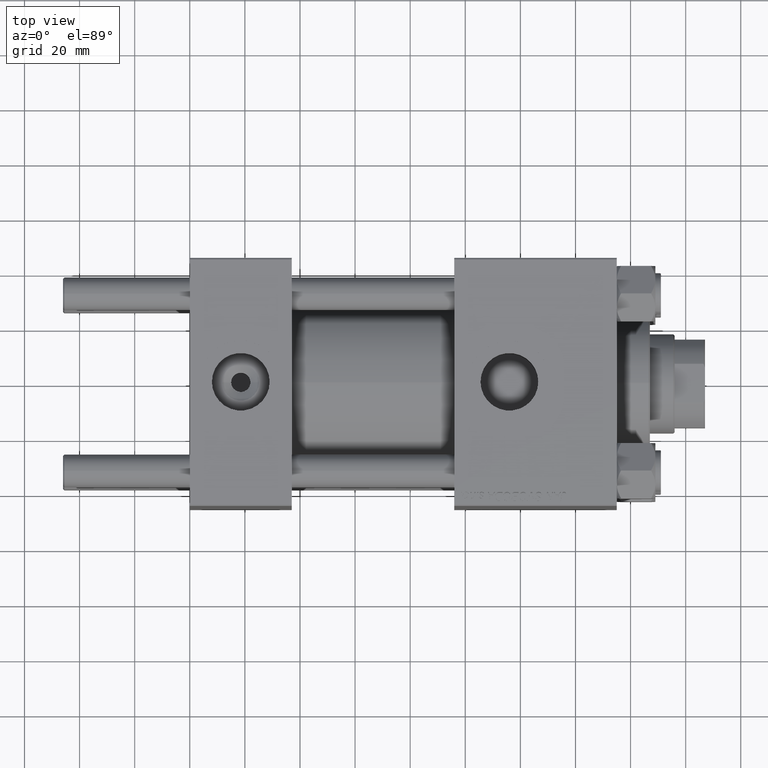
[diagram: clean part render]
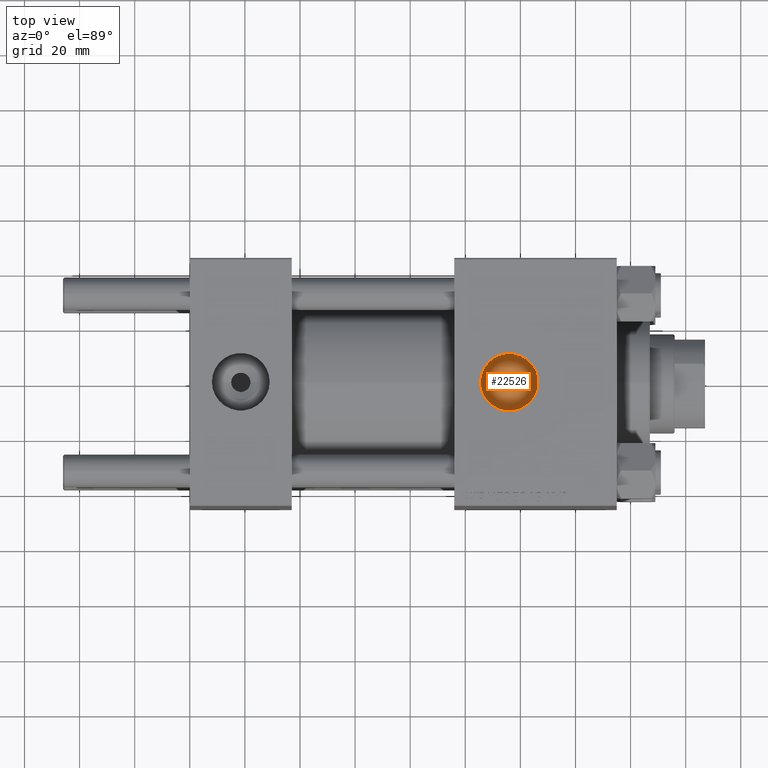
[diagram: same view with one face highlighted and labeled with its STEP entity id]
A machine part, top view. The second image highlights one B-rep face of the part: STEP entity #22526.
In plain terms, the highlighted planar face has unit normal (0, 0, 1).
Its self-contained STEP definition (entity closure, byte-faithful):
#1227 = VECTOR ( 'NONE', #41756, 1000.000000000000000 ) ;
#2108 = CARTESIAN_POINT ( 'NONE',  ( 126.2999999999999972, -1.934011375354403928, 28.59999999999998721 ) ) ;
#2883 = AXIS2_PLACEMENT_3D ( 'NONE', #12881, #35772, #31487 ) ;
#3517 = EDGE_CURVE ( 'NONE', #19360, #13365, #35632, .T. ) ;
#4107 = CARTESIAN_POINT ( 'NONE',  ( 105.5199999999999960, -6.938893903907227589E-15, 28.59999999999998721 ) ) ;
#5477 = CIRCLE ( 'NONE', #47311, 10.48000000000000398 ) ;
#6266 = ORIENTED_EDGE ( 'NONE', *, *, #32149, .T. ) ;
#11311 = CARTESIAN_POINT ( 'NONE',  ( 116.0000000000000000, -6.938893903907227589E-15, 28.59999999999998721 ) ) ;
#12881 = CARTESIAN_POINT ( 'NONE',  ( 116.0000000000000000, -6.938893903907227589E-15, 28.59999999999998721 ) ) ;
#13350 = ORIENTED_EDGE ( 'NONE', *, *, #22627, .T. ) ;
#13358 = PLANE ( 'NONE',  #2883 ) ;
#13365 = VERTEX_POINT ( 'NONE', #2108 ) ;
#15323 = CARTESIAN_POINT ( 'NONE',  ( 126.2999999999999972, 0.000000000000000000, 28.59999999999998721 ) ) ;
#16153 = DIRECTION ( 'NONE',  ( 1.000000000000000000, 0.000000000000000000, 0.000000000000000000 ) ) ;
#18980 = CIRCLE ( 'NONE', #30989, 10.48000000000000398 ) ;
#19360 = VERTEX_POINT ( 'NONE', #29444 ) ;
#22526 = ADVANCED_FACE ( 'NONE', ( #49402 ), #13358, .T. ) ;
#22627 = EDGE_CURVE ( 'NONE', #19360, #26767, #18980, .T. ) ;
#26767 = VERTEX_POINT ( 'NONE', #4107 ) ;
#28051 = EDGE_LOOP ( 'NONE', ( #13350, #6266, #35423 ) ) ;
#29444 = CARTESIAN_POINT ( 'NONE',  ( 126.2999999999999972, 1.934011375354389939, 28.59999999999998721 ) ) ;
#30989 = AXIS2_PLACEMENT_3D ( 'NONE', #46861, #35278, #16153 ) ;
#31487 = DIRECTION ( 'NONE',  ( 1.000000000000000000, 0.000000000000000000, -0.000000000000000000 ) ) ;
#32149 = EDGE_CURVE ( 'NONE', #26767, #13365, #5477, .T. ) ;
#35278 = DIRECTION ( 'NONE',  ( 0.000000000000000000, 0.000000000000000000, 1.000000000000000000 ) ) ;
#35423 = ORIENTED_EDGE ( 'NONE', *, *, #3517, .F. ) ;
#35632 = LINE ( 'NONE', #15323, #1227 ) ;
#35772 = DIRECTION ( 'NONE',  ( 0.000000000000000000, 0.000000000000000000, 1.000000000000000000 ) ) ;
#37743 = DIRECTION ( 'NONE',  ( 1.000000000000000000, 0.000000000000000000, 0.000000000000000000 ) ) ;
#41756 = DIRECTION ( 'NONE',  ( 0.000000000000000000, -1.000000000000000000, 0.000000000000000000 ) ) ;
#45051 = DIRECTION ( 'NONE',  ( 0.000000000000000000, 0.000000000000000000, 1.000000000000000000 ) ) ;
#46861 = CARTESIAN_POINT ( 'NONE',  ( 116.0000000000000000, -6.938893903907227589E-15, 28.59999999999998721 ) ) ;
#47311 = AXIS2_PLACEMENT_3D ( 'NONE', #11311, #45051, #37743 ) ;
#49402 = FACE_OUTER_BOUND ( 'NONE', #28051, .T. ) ;